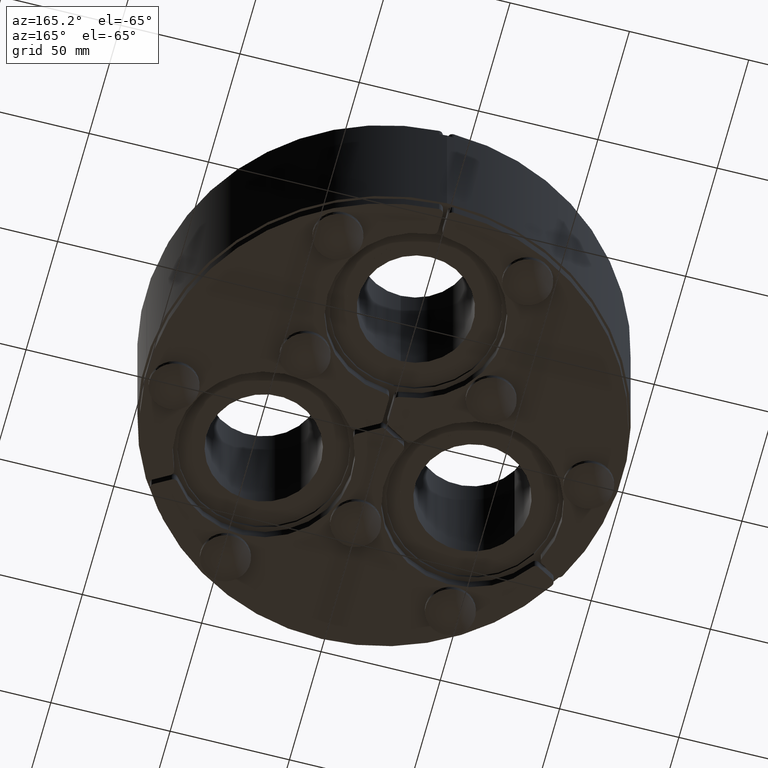
[diagram: clean part render]
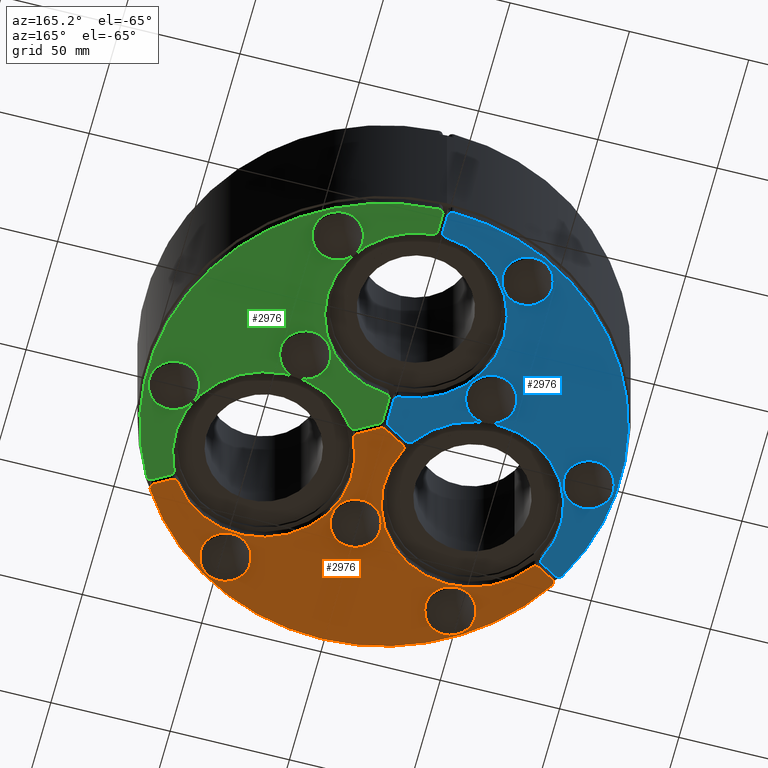
[diagram: same view with three faces highlighted in distinct colors, each labeled with its STEP entity id]
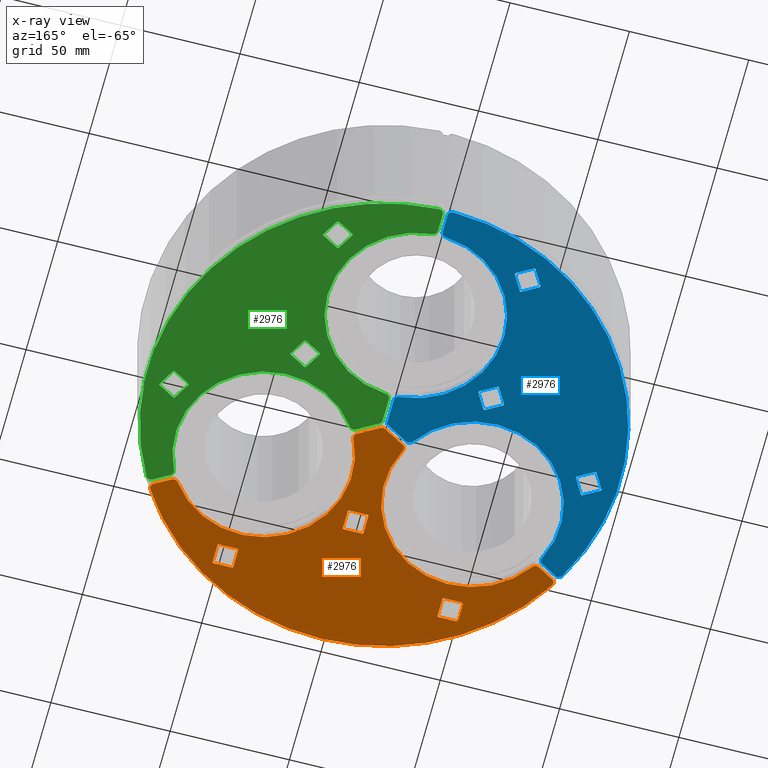
[diagram: x-ray of the same camera — body ghosted, the three highlighted faces saturated]
A machine part, auxiliary view with three faces highlighted in distinct colors.
The next image is the same camera in x-ray (body ghosted, the three faces saturated) — at least one of them is partly hidden behind the body in this view.
Their STEP definitions:

[orange] entity #2976 — the highlighted planar face has unit normal (0, 0, 1).
#2596=CARTESIAN_POINT('',(-83.464278118733006,-49.342823977948214,0.0));
#2597=VERTEX_POINT('',#2596);
#2604=CARTESIAN_POINT('',(-84.164572512933688,-52.127964987280329,0.0));
#2605=VERTEX_POINT('',#2604);
#2606=CARTESIAN_POINT('',(-82.46427811873302,-51.074874785517103,0.0));
#2607=DIRECTION('',(0.0,0.0,1.0));
#2608=DIRECTION('',(-0.969813134617152,0.243849305769063,0.0));
#2609=AXIS2_PLACEMENT_3D('',#2606,#2607,#2608);
#2610=CIRCLE('',#2609,2.0);
#2611=EDGE_CURVE('',#2597,#2605,#2610,.T.);
#2628=CARTESIAN_POINT('',(84.164572512933944,-52.127964987279938,0.0));
#2629=VERTEX_POINT('',#2628);
#2630=CARTESIAN_POINT('',(0.0,1.387779E-016,0.0));
#2631=DIRECTION('',(0.0,0.0,-1.0));
#2632=DIRECTION('',(0.860930717145565,0.508722223099427,0.0));
#2633=AXIS2_PLACEMENT_3D('',#2630,#2631,#2632);
#2634=CIRCLE('',#2633,98.999999999999986);
#2635=EDGE_CURVE('',#2629,#2605,#2634,.T.);
#2655=CARTESIAN_POINT('',(1.580540E-013,-58.103985288041748,0.0));
#2656=DIRECTION('',(0.0,0.0,1.0));
#2657=DIRECTION('',(1.0,0.0,0.0));
#2658=AXIS2_PLACEMENT_3D('',#2655,#2656,#2657);
#2659=PLANE('',#2658);
#2660=ORIENTED_EDGE('',*,*,#2611,.F.);
#2661=CARTESIAN_POINT('',(-76.909199372079286,-45.558247499008488,0.0));
#2662=VERTEX_POINT('',#2661);
#2663=CARTESIAN_POINT('',(-83.46427811873302,-49.342823977948214,0.0));
#2664=DIRECTION('',(0.866025403784439,0.5,0.0));
#2665=VECTOR('',#2664,7.569152957879456);
#2666=LINE('',#2663,#2665);
#2667=EDGE_CURVE('',#2597,#2662,#2666,.T.);
#2668=ORIENTED_EDGE('',*,*,#2667,.T.);
#2669=CARTESIAN_POINT('',(-74.259203655106717,-46.160026598547752,0.0));
#2670=VERTEX_POINT('',#2669);
#2671=CARTESIAN_POINT('',(-75.909199372079286,-47.290298306577363,0.0));
#2672=DIRECTION('',(0.0,0.0,1.0));
#2673=DIRECTION('',(0.221448712561873,0.975172019545623,0.0));
#2674=AXIS2_PLACEMENT_3D('',#2671,#2672,#2673);
#2675=CIRCLE('',#2674,2.0);
#2676=EDGE_CURVE('',#2670,#2662,#2675,.T.);
#2677=ORIENTED_EDGE('',*,*,#2676,.F.);
#2678=CARTESIAN_POINT('',(-10.363208280967214,-9.2696564691491,0.0));
#2679=VERTEX_POINT('',#2678);
#2680=CARTESIAN_POINT('',(-43.734282891114098,-25.25000000000005,0.0));
#2681=DIRECTION('',(0.0,0.0,1.0));
#2682=DIRECTION('',(-0.852195533948477,-0.523223443586265,0.0));
#2683=AXIS2_PLACEMENT_3D('',#2680,#2681,#2682);
#2684=CIRCLE('',#2683,36.999999999999993);
#2685=EDGE_CURVE('',#2670,#2679,#2684,.T.);
#2686=ORIENTED_EDGE('',*,*,#2685,.T.);
#2687=CARTESIAN_POINT('',(-9.559366410148462,-6.673803308561258,0.0));
#2688=VERTEX_POINT('',#2687);
#2689=CARTESIAN_POINT('',(-8.559366410148463,-8.405854116130129,0.0));
#2690=DIRECTION('',(0.0,0.0,1.0));
#2691=DIRECTION('',(-0.955248098267223,0.295805799058867,0.0));
#2692=AXIS2_PLACEMENT_3D('',#2689,#2690,#2691);
#2693=CIRCLE('',#2692,2.0);
#2694=EDGE_CURVE('',#2688,#2679,#2693,.T.);
#2695=ORIENTED_EDGE('',*,*,#2694,.F.);
#2696=CARTESIAN_POINT('',(-0.999999999999628,-1.732050807569175,0.0));
#2697=VERTEX_POINT('',#2696);
#2698=CARTESIAN_POINT('',(-9.559366410148462,-6.673803308561258,0.0));
#2699=DIRECTION('',(0.866025403784438,0.500000000000001,0.0));
#2700=VECTOR('',#2699,9.883505001984148);
#2701=LINE('',#2698,#2700);
#2702=EDGE_CURVE('',#2688,#2697,#2701,.T.);
#2703=ORIENTED_EDGE('',*,*,#2702,.T.);
#2704=CARTESIAN_POINT('',(1.000000000000374,-1.732050807569178,0.0));
#2705=VERTEX_POINT('',#2704);
#2706=CARTESIAN_POINT('',(3.719247E-013,-3.464101615138055,0.0));
#2707=DIRECTION('',(0.0,0.0,1.0));
#2708=DIRECTION('',(0.0,1.0,0.0));
#2709=AXIS2_PLACEMENT_3D('',#2706,#2707,#2708);
#2710=CIRCLE('',#2709,2.0);
#2711=EDGE_CURVE('',#2705,#2697,#2710,.T.);
#2712=ORIENTED_EDGE('',*,*,#2711,.F.);
#2713=CARTESIAN_POINT('',(9.559366410148598,-6.673803308560905,0.0));
#2714=VERTEX_POINT('',#2713);
#2715=CARTESIAN_POINT('',(1.000000000000373,-1.732050807569178,0.0));
#2716=DIRECTION('',(0.866025403784438,-0.500000000000001,0.0));
#2717=VECTOR('',#2716,9.883505001983441);
#2718=LINE('',#2715,#2717);
#2719=EDGE_CURVE('',#2705,#2714,#2718,.T.);
#2720=ORIENTED_EDGE('',*,*,#2719,.T.);
#2721=CARTESIAN_POINT('',(10.363208280967346,-9.269656469148773,0.0));
#2722=VERTEX_POINT('',#2721);
#2723=CARTESIAN_POINT('',(8.559366410148597,-8.405854116129783,0.0));
#2724=DIRECTION('',(0.0,0.0,1.0));
#2725=DIRECTION('',(0.955248098267223,0.295805799058864,0.0));
#2726=AXIS2_PLACEMENT_3D('',#2723,#2724,#2725);
#2727=CIRCLE('',#2726,2.0);
#2728=EDGE_CURVE('',#2722,#2714,#2727,.T.);
#2729=ORIENTED_EDGE('',*,*,#2728,.F.);
#2730=CARTESIAN_POINT('',(74.259203655106944,-46.160026598547418,0.0));
#2731=VERTEX_POINT('',#2730);
#2732=CARTESIAN_POINT('',(43.734282891114098,-25.250000000000021,0.0));
#2733=DIRECTION('',(0.0,0.0,1.0));
#2734=DIRECTION('',(-0.879222560975512,0.476411259597904,0.0));
#2735=AXIS2_PLACEMENT_3D('',#2732,#2733,#2734);
#2736=CIRCLE('',#2735,37.000000000000007);
#2737=EDGE_CURVE('',#2722,#2731,#2736,.T.);
#2738=ORIENTED_EDGE('',*,*,#2737,.T.);
#2739=CARTESIAN_POINT('',(76.909199372079527,-45.558247499008132,0.0));
#2740=VERTEX_POINT('',#2739);
#2741=CARTESIAN_POINT('',(75.909199372079541,-47.290298306577007,0.0));
#2742=DIRECTION('',(0.0,0.0,1.0));
#2743=DIRECTION('',(-0.221448712561886,0.97517201954562,0.0));
#2744=AXIS2_PLACEMENT_3D('',#2741,#2742,#2743);
#2745=CIRCLE('',#2744,2.0);
#2746=EDGE_CURVE('',#2740,#2731,#2745,.T.);
#2747=ORIENTED_EDGE('',*,*,#2746,.F.);
#2748=CARTESIAN_POINT('',(83.464278118733247,-49.34282397794783,0.0));
#2749=VERTEX_POINT('',#2748);
#2750=CARTESIAN_POINT('',(76.909199372079541,-45.558247499008125,0.0));
#2751=DIRECTION('',(0.866025403784439,-0.499999999999999,0.0));
#2752=VECTOR('',#2751,7.56915295787942);
#2753=LINE('',#2750,#2752);
#2754=EDGE_CURVE('',#2740,#2749,#2753,.T.);
#2755=ORIENTED_EDGE('',*,*,#2754,.T.);
#2756=CARTESIAN_POINT('',(82.464278118733247,-51.074874785516712,0.0));
#2757=DIRECTION('',(0.0,0.0,1.0));
#2758=DIRECTION('',(0.969813134617153,0.24384930576906,0.0));
#2759=AXIS2_PLACEMENT_3D('',#2756,#2757,#2758);
#2760=CIRCLE('',#2759,2.0);
#2761=EDGE_CURVE('',#2629,#2749,#2760,.T.);
#2762=ORIENTED_EDGE('',*,*,#2761,.F.);
#2763=ORIENTED_EDGE('',*,*,#2635,.T.);
#2764=EDGE_LOOP('',(#2660,#2668,#2677,#2686,#2695,#2703,#2712,#2720,#2729,#2738,#2747,#2755,#2762,#2763));
#2765=FACE_OUTER_BOUND('',#2764,.T.);
#2766=CARTESIAN_POINT('',(51.478614294599041,-69.279294504124238,0.0));
#2767=VERTEX_POINT('',#2766);
#2768=CARTESIAN_POINT('',(50.978614294599048,-68.779294504124266,0.0));
#2769=VERTEX_POINT('',#2768);
#2770=CARTESIAN_POINT('',(50.978614294599048,-69.279294504124252,0.0));
#2771=DIRECTION('',(0.0,0.0,1.0));
#2772=DIRECTION('',(-1.0,0.0,0.0));
#2773=AXIS2_PLACEMENT_3D('',#2770,#2771,#2772);
#2774=CIRCLE('',#2773,0.499999999999994);
#2775=EDGE_CURVE('',#2767,#2769,#2774,.T.);
#2776=ORIENTED_EDGE('',*,*,#2775,.T.);
#2777=CARTESIAN_POINT('',(43.278614294599038,-68.779294504124252,0.0));
#2778=VERTEX_POINT('',#2777);
#2779=CARTESIAN_POINT('',(50.978614294599055,-68.779294504124252,0.0));
#2780=DIRECTION('',(-1.0,0.0,0.0));
#2781=VECTOR('',#2780,7.700000000000017);
#2782=LINE('',#2779,#2781);
#2783=EDGE_CURVE('',#2769,#2778,#2782,.T.);
#2784=ORIENTED_EDGE('',*,*,#2783,.T.);
#2785=CARTESIAN_POINT('',(42.778614294599045,-69.279294504124238,0.0));
#2786=VERTEX_POINT('',#2785);
#2787=CARTESIAN_POINT('',(43.278614294599038,-69.279294504124238,0.0));
#2788=DIRECTION('',(0.0,0.0,1.0));
#2789=DIRECTION('',(0.0,-1.0,0.0));
#2790=AXIS2_PLACEMENT_3D('',#2787,#2788,#2789);
#2791=CIRCLE('',#2790,0.500000000000003);
#2792=EDGE_CURVE('',#2778,#2786,#2791,.T.);
#2793=ORIENTED_EDGE('',*,*,#2792,.T.);
#2794=CARTESIAN_POINT('',(42.778614294599045,-76.979294504124269,0.0));
#2795=VERTEX_POINT('',#2794);
#2796=CARTESIAN_POINT('',(42.778614294599045,-69.279294504124238,0.0));
#2797=DIRECTION('',(0.0,-1.0,0.0));
#2798=VECTOR('',#2797,7.700000000000031);
#2799=LINE('',#2796,#2798);
#2800=EDGE_CURVE('',#2786,#2795,#2799,.T.);
#2801=ORIENTED_EDGE('',*,*,#2800,.T.);
#2802=CARTESIAN_POINT('',(43.278614294599038,-77.479294504124269,0.0));
#2803=VERTEX_POINT('',#2802);
#2804=CARTESIAN_POINT('',(43.278614294599038,-76.979294504124283,0.0));
#2805=DIRECTION('',(0.0,0.0,1.0));
#2806=DIRECTION('',(1.0,0.0,0.0));
#2807=AXIS2_PLACEMENT_3D('',#2804,#2805,#2806);
#2808=CIRCLE('',#2807,0.499999999999998);
#2809=EDGE_CURVE('',#2795,#2803,#2808,.T.);
#2810=ORIENTED_EDGE('',*,*,#2809,.T.);
#2811=CARTESIAN_POINT('',(50.978614294599048,-77.479294504124269,0.0));
#2812=VERTEX_POINT('',#2811);
#2813=CARTESIAN_POINT('',(43.278614294599038,-77.479294504124269,0.0));
#2814=DIRECTION('',(1.0,0.0,0.0));
#2815=VECTOR('',#2814,7.700000000000017);
#2816=LINE('',#2813,#2815);
#2817=EDGE_CURVE('',#2803,#2812,#2816,.T.);
#2818=ORIENTED_EDGE('',*,*,#2817,.T.);
#2819=CARTESIAN_POINT('',(51.478614294599041,-76.979294504124269,0.0));
#2820=VERTEX_POINT('',#2819);
#2821=CARTESIAN_POINT('',(50.978614294599048,-76.979294504124283,0.0));
#2822=DIRECTION('',(0.0,0.0,1.0));
#2823=DIRECTION('',(0.0,1.0,0.0));
#2824=AXIS2_PLACEMENT_3D('',#2821,#2822,#2823);
#2825=CIRCLE('',#2824,0.499999999999998);
#2826=EDGE_CURVE('',#2812,#2820,#2825,.T.);
#2827=ORIENTED_EDGE('',*,*,#2826,.T.);
#2828=CARTESIAN_POINT('',(51.478614294599041,-76.979294504124269,0.0));
#2829=DIRECTION('',(0.0,1.0,0.0));
#2830=VECTOR('',#2829,7.700000000000031);
#2831=LINE('',#2828,#2830);
#2832=EDGE_CURVE('',#2820,#2767,#2831,.T.);
#2833=ORIENTED_EDGE('',*,*,#2832,.T.);
#2834=EDGE_LOOP('',(#2776,#2784,#2793,#2801,#2810,#2818,#2827,#2833));
#2835=FACE_BOUND('',#2834,.T.);
#2836=CARTESIAN_POINT('',(-50.978614294598998,-68.779294504124294,0.0));
#2837=VERTEX_POINT('',#2836);
#2838=CARTESIAN_POINT('',(-51.478614294598998,-69.279294504124294,0.0));
#2839=VERTEX_POINT('',#2838);
#2840=CARTESIAN_POINT('',(-50.978614294598998,-69.279294504124294,0.0));
#2841=DIRECTION('',(0.0,0.0,1.0));
#2842=DIRECTION('',(0.0,-1.0,0.0));
#2843=AXIS2_PLACEMENT_3D('',#2840,#2841,#2842);
#2844=CIRCLE('',#2843,0.500000000000003);
#2845=EDGE_CURVE('',#2837,#2839,#2844,.T.);
#2846=ORIENTED_EDGE('',*,*,#2845,.T.);
#2847=CARTESIAN_POINT('',(-51.478614294598998,-76.979294504124283,0.0));
#2848=VERTEX_POINT('',#2847);
#2849=CARTESIAN_POINT('',(-51.478614294598998,-69.279294504124294,0.0));
#2850=DIRECTION('',(0.0,-1.0,0.0));
#2851=VECTOR('',#2850,7.699999999999989);
#2852=LINE('',#2849,#2851);
#2853=EDGE_CURVE('',#2839,#2848,#2852,.T.);
#2854=ORIENTED_EDGE('',*,*,#2853,.T.);
#2855=CARTESIAN_POINT('',(-50.978614294598998,-77.479294504124283,0.0));
#2856=VERTEX_POINT('',#2855);
#2857=CARTESIAN_POINT('',(-50.978614294598998,-76.979294504124283,0.0));
#2858=DIRECTION('',(0.0,0.0,1.0));
#2859=DIRECTION('',(1.0,0.0,0.0));
#2860=AXIS2_PLACEMENT_3D('',#2857,#2858,#2859);
#2861=CIRCLE('',#2860,0.499999999999998);
#2862=EDGE_CURVE('',#2848,#2856,#2861,.T.);
#2863=ORIENTED_EDGE('',*,*,#2862,.T.);
#2864=CARTESIAN_POINT('',(-43.278614294599002,-77.479294504124283,0.0));
#2865=VERTEX_POINT('',#2864);
#2866=CARTESIAN_POINT('',(-50.978614294598998,-77.479294504124283,0.0));
#2867=DIRECTION('',(1.0,0.0,0.0));
#2868=VECTOR('',#2867,7.700000000000003);
#2869=LINE('',#2866,#2868);
#2870=EDGE_CURVE('',#2856,#2865,#2869,.T.);
#2871=ORIENTED_EDGE('',*,*,#2870,.T.);
#2872=CARTESIAN_POINT('',(-42.778614294599002,-76.979294504124283,0.0));
#2873=VERTEX_POINT('',#2872);
#2874=CARTESIAN_POINT('',(-43.278614294599002,-76.979294504124283,0.0));
#2875=DIRECTION('',(0.0,0.0,1.0));
#2876=DIRECTION('',(0.0,1.0,0.0));
#2877=AXIS2_PLACEMENT_3D('',#2874,#2875,#2876);
#2878=CIRCLE('',#2877,0.499999999999998);
#2879=EDGE_CURVE('',#2865,#2873,#2878,.T.);
#2880=ORIENTED_EDGE('',*,*,#2879,.T.);
#2881=CARTESIAN_POINT('',(-42.778614294599002,-69.279294504124294,0.0));
#2882=VERTEX_POINT('',#2881);
#2883=CARTESIAN_POINT('',(-42.778614294599002,-76.979294504124283,0.0));
#2884=DIRECTION('',(0.0,1.0,0.0));
#2885=VECTOR('',#2884,7.699999999999989);
#2886=LINE('',#2883,#2885);
#2887=EDGE_CURVE('',#2873,#2882,#2886,.T.);
#2888=ORIENTED_EDGE('',*,*,#2887,.T.);
#2889=CARTESIAN_POINT('',(-43.278614294599002,-68.779294504124266,0.0));
#2890=VERTEX_POINT('',#2889);
#2891=CARTESIAN_POINT('',(-43.278614294599002,-69.279294504124294,0.0));
#2892=DIRECTION('',(0.0,0.0,1.0));
#2893=DIRECTION('',(-1.0,0.0,0.0));
#2894=AXIS2_PLACEMENT_3D('',#2891,#2892,#2893);
#2895=CIRCLE('',#2894,0.499999999999994);
#2896=EDGE_CURVE('',#2882,#2890,#2895,.T.);
#2897=ORIENTED_EDGE('',*,*,#2896,.T.);
#2898=CARTESIAN_POINT('',(-43.278614294599002,-68.779294504124266,0.0));
#2899=DIRECTION('',(-1.0,0.0,0.0));
#2900=VECTOR('',#2899,7.699999999999996);
#2901=LINE('',#2898,#2900);
#2902=EDGE_CURVE('',#2890,#2837,#2901,.T.);
#2903=ORIENTED_EDGE('',*,*,#2902,.T.);
#2904=EDGE_LOOP('',(#2846,#2854,#2863,#2871,#2880,#2888,#2897,#2903));
#2905=FACE_BOUND('',#2904,.T.);
#2906=CARTESIAN_POINT('',(4.350000000000008,-41.150000000000233,0.0));
#2907=VERTEX_POINT('',#2906);
#2908=CARTESIAN_POINT('',(3.849999999999996,-40.650000000000233,0.0));
#2909=VERTEX_POINT('',#2908);
#2910=CARTESIAN_POINT('',(3.850000000000006,-41.15000000000024,0.0));
#2911=DIRECTION('',(0.0,0.0,1.0));
#2912=DIRECTION('',(-1.0,0.0,0.0));
#2913=AXIS2_PLACEMENT_3D('',#2910,#2911,#2912);
#2914=CIRCLE('',#2913,0.499999999999994);
#2915=EDGE_CURVE('',#2907,#2909,#2914,.T.);
#2916=ORIENTED_EDGE('',*,*,#2915,.T.);
#2917=CARTESIAN_POINT('',(-3.849999999999994,-40.650000000000247,0.0));
#2918=VERTEX_POINT('',#2917);
#2919=CARTESIAN_POINT('',(3.849999999999996,-40.65000000000024,0.0));
#2920=DIRECTION('',(-1.0,0.0,0.0));
#2921=VECTOR('',#2920,7.69999999999999);
#2922=LINE('',#2919,#2921);
#2923=EDGE_CURVE('',#2909,#2918,#2922,.T.);
#2924=ORIENTED_EDGE('',*,*,#2923,.T.);
#2925=CARTESIAN_POINT('',(-4.349999999999995,-41.150000000000233,0.0));
#2926=VERTEX_POINT('',#2925);
#2927=CARTESIAN_POINT('',(-3.849999999999993,-41.15000000000024,0.0));
#2928=DIRECTION('',(0.0,0.0,1.0));
#2929=DIRECTION('',(0.0,-1.0,0.0));
#2930=AXIS2_PLACEMENT_3D('',#2927,#2928,#2929);
#2931=CIRCLE('',#2930,0.500000000000003);
#2932=EDGE_CURVE('',#2918,#2926,#2931,.T.);
#2933=ORIENTED_EDGE('',*,*,#2932,.T.);
#2934=CARTESIAN_POINT('',(-4.349999999999993,-48.85000000000025,0.0));
#2935=VERTEX_POINT('',#2934);
#2936=CARTESIAN_POINT('',(-4.349999999999995,-41.150000000000233,0.0));
#2937=DIRECTION('',(0.0,-1.0,0.0));
#2938=VECTOR('',#2937,7.70000000000001);
#2939=LINE('',#2936,#2938);
#2940=EDGE_CURVE('',#2926,#2935,#2939,.T.);
#2941=ORIENTED_EDGE('',*,*,#2940,.T.);
#2942=CARTESIAN_POINT('',(-3.849999999999991,-49.350000000000236,0.0));
#2943=VERTEX_POINT('',#2942);
#2944=CARTESIAN_POINT('',(-3.849999999999991,-48.850000000000236,0.0));
#2945=DIRECTION('',(0.0,0.0,1.0));
#2946=DIRECTION('',(1.0,0.0,0.0));
#2947=AXIS2_PLACEMENT_3D('',#2944,#2945,#2946);
#2948=CIRCLE('',#2947,0.499999999999998);
#2949=EDGE_CURVE('',#2935,#2943,#2948,.T.);
#2950=ORIENTED_EDGE('',*,*,#2949,.T.);
#2951=CARTESIAN_POINT('',(3.85,-49.350000000000236,0.0));
#2952=VERTEX_POINT('',#2951);
#2953=CARTESIAN_POINT('',(-3.849999999999991,-49.350000000000236,0.0));
#2954=DIRECTION('',(1.0,0.0,0.0));
#2955=VECTOR('',#2954,7.69999999999999);
#2956=LINE('',#2953,#2955);
#2957=EDGE_CURVE('',#2943,#2952,#2956,.T.);
#2958=ORIENTED_EDGE('',*,*,#2957,.T.);
#2959=CARTESIAN_POINT('',(4.350000000000001,-48.85000000000025,0.0));
#2960=VERTEX_POINT('',#2959);
#2961=CARTESIAN_POINT('',(3.85,-48.850000000000236,0.0));
#2962=DIRECTION('',(0.0,0.0,1.0));
#2963=DIRECTION('',(0.0,1.0,0.0));
#2964=AXIS2_PLACEMENT_3D('',#2961,#2962,#2963);
#2965=CIRCLE('',#2964,0.499999999999998);
#2966=EDGE_CURVE('',#2952,#2960,#2965,.T.);
#2967=ORIENTED_EDGE('',*,*,#2966,.T.);
#2968=CARTESIAN_POINT('',(4.350000000000002,-48.850000000000243,0.0));
#2969=DIRECTION('',(0.0,1.0,0.0));
#2970=VECTOR('',#2969,7.70000000000001);
#2971=LINE('',#2968,#2970);
#2972=EDGE_CURVE('',#2960,#2907,#2971,.T.);
#2973=ORIENTED_EDGE('',*,*,#2972,.T.);
#2974=EDGE_LOOP('',(#2916,#2924,#2933,#2941,#2950,#2958,#2967,#2973));
#2975=FACE_BOUND('',#2974,.T.);
#2976=ADVANCED_FACE('',(#2765,#2835,#2905,#2975),#2659,.F.);

[blue] entity #2976 — the highlighted planar face has unit normal (0, 0, 1).
#2596=CARTESIAN_POINT('',(-83.464278118733006,-49.342823977948214,0.0));
#2597=VERTEX_POINT('',#2596);
#2604=CARTESIAN_POINT('',(-84.164572512933688,-52.127964987280329,0.0));
#2605=VERTEX_POINT('',#2604);
#2606=CARTESIAN_POINT('',(-82.46427811873302,-51.074874785517103,0.0));
#2607=DIRECTION('',(0.0,0.0,1.0));
#2608=DIRECTION('',(-0.969813134617152,0.243849305769063,0.0));
#2609=AXIS2_PLACEMENT_3D('',#2606,#2607,#2608);
#2610=CIRCLE('',#2609,2.0);
#2611=EDGE_CURVE('',#2597,#2605,#2610,.T.);
#2628=CARTESIAN_POINT('',(84.164572512933944,-52.127964987279938,0.0));
#2629=VERTEX_POINT('',#2628);
#2630=CARTESIAN_POINT('',(0.0,1.387779E-016,0.0));
#2631=DIRECTION('',(0.0,0.0,-1.0));
#2632=DIRECTION('',(0.860930717145565,0.508722223099427,0.0));
#2633=AXIS2_PLACEMENT_3D('',#2630,#2631,#2632);
#2634=CIRCLE('',#2633,98.999999999999986);
#2635=EDGE_CURVE('',#2629,#2605,#2634,.T.);
#2655=CARTESIAN_POINT('',(1.580540E-013,-58.103985288041748,0.0));
#2656=DIRECTION('',(0.0,0.0,1.0));
#2657=DIRECTION('',(1.0,0.0,0.0));
#2658=AXIS2_PLACEMENT_3D('',#2655,#2656,#2657);
#2659=PLANE('',#2658);
#2660=ORIENTED_EDGE('',*,*,#2611,.F.);
#2661=CARTESIAN_POINT('',(-76.909199372079286,-45.558247499008488,0.0));
#2662=VERTEX_POINT('',#2661);
#2663=CARTESIAN_POINT('',(-83.46427811873302,-49.342823977948214,0.0));
#2664=DIRECTION('',(0.866025403784439,0.5,0.0));
#2665=VECTOR('',#2664,7.569152957879456);
#2666=LINE('',#2663,#2665);
#2667=EDGE_CURVE('',#2597,#2662,#2666,.T.);
#2668=ORIENTED_EDGE('',*,*,#2667,.T.);
#2669=CARTESIAN_POINT('',(-74.259203655106717,-46.160026598547752,0.0));
#2670=VERTEX_POINT('',#2669);
#2671=CARTESIAN_POINT('',(-75.909199372079286,-47.290298306577363,0.0));
#2672=DIRECTION('',(0.0,0.0,1.0));
#2673=DIRECTION('',(0.221448712561873,0.975172019545623,0.0));
#2674=AXIS2_PLACEMENT_3D('',#2671,#2672,#2673);
#2675=CIRCLE('',#2674,2.0);
#2676=EDGE_CURVE('',#2670,#2662,#2675,.T.);
#2677=ORIENTED_EDGE('',*,*,#2676,.F.);
#2678=CARTESIAN_POINT('',(-10.363208280967214,-9.2696564691491,0.0));
#2679=VERTEX_POINT('',#2678);
#2680=CARTESIAN_POINT('',(-43.734282891114098,-25.25000000000005,0.0));
#2681=DIRECTION('',(0.0,0.0,1.0));
#2682=DIRECTION('',(-0.852195533948477,-0.523223443586265,0.0));
#2683=AXIS2_PLACEMENT_3D('',#2680,#2681,#2682);
#2684=CIRCLE('',#2683,36.999999999999993);
#2685=EDGE_CURVE('',#2670,#2679,#2684,.T.);
#2686=ORIENTED_EDGE('',*,*,#2685,.T.);
#2687=CARTESIAN_POINT('',(-9.559366410148462,-6.673803308561258,0.0));
#2688=VERTEX_POINT('',#2687);
#2689=CARTESIAN_POINT('',(-8.559366410148463,-8.405854116130129,0.0));
#2690=DIRECTION('',(0.0,0.0,1.0));
#2691=DIRECTION('',(-0.955248098267223,0.295805799058867,0.0));
#2692=AXIS2_PLACEMENT_3D('',#2689,#2690,#2691);
#2693=CIRCLE('',#2692,2.0);
#2694=EDGE_CURVE('',#2688,#2679,#2693,.T.);
#2695=ORIENTED_EDGE('',*,*,#2694,.F.);
#2696=CARTESIAN_POINT('',(-0.999999999999628,-1.732050807569175,0.0));
#2697=VERTEX_POINT('',#2696);
#2698=CARTESIAN_POINT('',(-9.559366410148462,-6.673803308561258,0.0));
#2699=DIRECTION('',(0.866025403784438,0.500000000000001,0.0));
#2700=VECTOR('',#2699,9.883505001984148);
#2701=LINE('',#2698,#2700);
#2702=EDGE_CURVE('',#2688,#2697,#2701,.T.);
#2703=ORIENTED_EDGE('',*,*,#2702,.T.);
#2704=CARTESIAN_POINT('',(1.000000000000374,-1.732050807569178,0.0));
#2705=VERTEX_POINT('',#2704);
#2706=CARTESIAN_POINT('',(3.719247E-013,-3.464101615138055,0.0));
#2707=DIRECTION('',(0.0,0.0,1.0));
#2708=DIRECTION('',(0.0,1.0,0.0));
#2709=AXIS2_PLACEMENT_3D('',#2706,#2707,#2708);
#2710=CIRCLE('',#2709,2.0);
#2711=EDGE_CURVE('',#2705,#2697,#2710,.T.);
#2712=ORIENTED_EDGE('',*,*,#2711,.F.);
#2713=CARTESIAN_POINT('',(9.559366410148598,-6.673803308560905,0.0));
#2714=VERTEX_POINT('',#2713);
#2715=CARTESIAN_POINT('',(1.000000000000373,-1.732050807569178,0.0));
#2716=DIRECTION('',(0.866025403784438,-0.500000000000001,0.0));
#2717=VECTOR('',#2716,9.883505001983441);
#2718=LINE('',#2715,#2717);
#2719=EDGE_CURVE('',#2705,#2714,#2718,.T.);
#2720=ORIENTED_EDGE('',*,*,#2719,.T.);
#2721=CARTESIAN_POINT('',(10.363208280967346,-9.269656469148773,0.0));
#2722=VERTEX_POINT('',#2721);
#2723=CARTESIAN_POINT('',(8.559366410148597,-8.405854116129783,0.0));
#2724=DIRECTION('',(0.0,0.0,1.0));
#2725=DIRECTION('',(0.955248098267223,0.295805799058864,0.0));
#2726=AXIS2_PLACEMENT_3D('',#2723,#2724,#2725);
#2727=CIRCLE('',#2726,2.0);
#2728=EDGE_CURVE('',#2722,#2714,#2727,.T.);
#2729=ORIENTED_EDGE('',*,*,#2728,.F.);
#2730=CARTESIAN_POINT('',(74.259203655106944,-46.160026598547418,0.0));
#2731=VERTEX_POINT('',#2730);
#2732=CARTESIAN_POINT('',(43.734282891114098,-25.250000000000021,0.0));
#2733=DIRECTION('',(0.0,0.0,1.0));
#2734=DIRECTION('',(-0.879222560975512,0.476411259597904,0.0));
#2735=AXIS2_PLACEMENT_3D('',#2732,#2733,#2734);
#2736=CIRCLE('',#2735,37.000000000000007);
#2737=EDGE_CURVE('',#2722,#2731,#2736,.T.);
#2738=ORIENTED_EDGE('',*,*,#2737,.T.);
#2739=CARTESIAN_POINT('',(76.909199372079527,-45.558247499008132,0.0));
#2740=VERTEX_POINT('',#2739);
#2741=CARTESIAN_POINT('',(75.909199372079541,-47.290298306577007,0.0));
#2742=DIRECTION('',(0.0,0.0,1.0));
#2743=DIRECTION('',(-0.221448712561886,0.97517201954562,0.0));
#2744=AXIS2_PLACEMENT_3D('',#2741,#2742,#2743);
#2745=CIRCLE('',#2744,2.0);
#2746=EDGE_CURVE('',#2740,#2731,#2745,.T.);
#2747=ORIENTED_EDGE('',*,*,#2746,.F.);
#2748=CARTESIAN_POINT('',(83.464278118733247,-49.34282397794783,0.0));
#2749=VERTEX_POINT('',#2748);
#2750=CARTESIAN_POINT('',(76.909199372079541,-45.558247499008125,0.0));
#2751=DIRECTION('',(0.866025403784439,-0.499999999999999,0.0));
#2752=VECTOR('',#2751,7.56915295787942);
#2753=LINE('',#2750,#2752);
#2754=EDGE_CURVE('',#2740,#2749,#2753,.T.);
#2755=ORIENTED_EDGE('',*,*,#2754,.T.);
#2756=CARTESIAN_POINT('',(82.464278118733247,-51.074874785516712,0.0));
#2757=DIRECTION('',(0.0,0.0,1.0));
#2758=DIRECTION('',(0.969813134617153,0.24384930576906,0.0));
#2759=AXIS2_PLACEMENT_3D('',#2756,#2757,#2758);
#2760=CIRCLE('',#2759,2.0);
#2761=EDGE_CURVE('',#2629,#2749,#2760,.T.);
#2762=ORIENTED_EDGE('',*,*,#2761,.F.);
#2763=ORIENTED_EDGE('',*,*,#2635,.T.);
#2764=EDGE_LOOP('',(#2660,#2668,#2677,#2686,#2695,#2703,#2712,#2720,#2729,#2738,#2747,#2755,#2762,#2763));
#2765=FACE_OUTER_BOUND('',#2764,.T.);
#2766=CARTESIAN_POINT('',(51.478614294599041,-69.279294504124238,0.0));
#2767=VERTEX_POINT('',#2766);
#2768=CARTESIAN_POINT('',(50.978614294599048,-68.779294504124266,0.0));
#2769=VERTEX_POINT('',#2768);
#2770=CARTESIAN_POINT('',(50.978614294599048,-69.279294504124252,0.0));
#2771=DIRECTION('',(0.0,0.0,1.0));
#2772=DIRECTION('',(-1.0,0.0,0.0));
#2773=AXIS2_PLACEMENT_3D('',#2770,#2771,#2772);
#2774=CIRCLE('',#2773,0.499999999999994);
#2775=EDGE_CURVE('',#2767,#2769,#2774,.T.);
#2776=ORIENTED_EDGE('',*,*,#2775,.T.);
#2777=CARTESIAN_POINT('',(43.278614294599038,-68.779294504124252,0.0));
#2778=VERTEX_POINT('',#2777);
#2779=CARTESIAN_POINT('',(50.978614294599055,-68.779294504124252,0.0));
#2780=DIRECTION('',(-1.0,0.0,0.0));
#2781=VECTOR('',#2780,7.700000000000017);
#2782=LINE('',#2779,#2781);
#2783=EDGE_CURVE('',#2769,#2778,#2782,.T.);
#2784=ORIENTED_EDGE('',*,*,#2783,.T.);
#2785=CARTESIAN_POINT('',(42.778614294599045,-69.279294504124238,0.0));
#2786=VERTEX_POINT('',#2785);
#2787=CARTESIAN_POINT('',(43.278614294599038,-69.279294504124238,0.0));
#2788=DIRECTION('',(0.0,0.0,1.0));
#2789=DIRECTION('',(0.0,-1.0,0.0));
#2790=AXIS2_PLACEMENT_3D('',#2787,#2788,#2789);
#2791=CIRCLE('',#2790,0.500000000000003);
#2792=EDGE_CURVE('',#2778,#2786,#2791,.T.);
#2793=ORIENTED_EDGE('',*,*,#2792,.T.);
#2794=CARTESIAN_POINT('',(42.778614294599045,-76.979294504124269,0.0));
#2795=VERTEX_POINT('',#2794);
#2796=CARTESIAN_POINT('',(42.778614294599045,-69.279294504124238,0.0));
#2797=DIRECTION('',(0.0,-1.0,0.0));
#2798=VECTOR('',#2797,7.700000000000031);
#2799=LINE('',#2796,#2798);
#2800=EDGE_CURVE('',#2786,#2795,#2799,.T.);
#2801=ORIENTED_EDGE('',*,*,#2800,.T.);
#2802=CARTESIAN_POINT('',(43.278614294599038,-77.479294504124269,0.0));
#2803=VERTEX_POINT('',#2802);
#2804=CARTESIAN_POINT('',(43.278614294599038,-76.979294504124283,0.0));
#2805=DIRECTION('',(0.0,0.0,1.0));
#2806=DIRECTION('',(1.0,0.0,0.0));
#2807=AXIS2_PLACEMENT_3D('',#2804,#2805,#2806);
#2808=CIRCLE('',#2807,0.499999999999998);
#2809=EDGE_CURVE('',#2795,#2803,#2808,.T.);
#2810=ORIENTED_EDGE('',*,*,#2809,.T.);
#2811=CARTESIAN_POINT('',(50.978614294599048,-77.479294504124269,0.0));
#2812=VERTEX_POINT('',#2811);
#2813=CARTESIAN_POINT('',(43.278614294599038,-77.479294504124269,0.0));
#2814=DIRECTION('',(1.0,0.0,0.0));
#2815=VECTOR('',#2814,7.700000000000017);
#2816=LINE('',#2813,#2815);
#2817=EDGE_CURVE('',#2803,#2812,#2816,.T.);
#2818=ORIENTED_EDGE('',*,*,#2817,.T.);
#2819=CARTESIAN_POINT('',(51.478614294599041,-76.979294504124269,0.0));
#2820=VERTEX_POINT('',#2819);
#2821=CARTESIAN_POINT('',(50.978614294599048,-76.979294504124283,0.0));
#2822=DIRECTION('',(0.0,0.0,1.0));
#2823=DIRECTION('',(0.0,1.0,0.0));
#2824=AXIS2_PLACEMENT_3D('',#2821,#2822,#2823);
#2825=CIRCLE('',#2824,0.499999999999998);
#2826=EDGE_CURVE('',#2812,#2820,#2825,.T.);
#2827=ORIENTED_EDGE('',*,*,#2826,.T.);
#2828=CARTESIAN_POINT('',(51.478614294599041,-76.979294504124269,0.0));
#2829=DIRECTION('',(0.0,1.0,0.0));
#2830=VECTOR('',#2829,7.700000000000031);
#2831=LINE('',#2828,#2830);
#2832=EDGE_CURVE('',#2820,#2767,#2831,.T.);
#2833=ORIENTED_EDGE('',*,*,#2832,.T.);
#2834=EDGE_LOOP('',(#2776,#2784,#2793,#2801,#2810,#2818,#2827,#2833));
#2835=FACE_BOUND('',#2834,.T.);
#2836=CARTESIAN_POINT('',(-50.978614294598998,-68.779294504124294,0.0));
#2837=VERTEX_POINT('',#2836);
#2838=CARTESIAN_POINT('',(-51.478614294598998,-69.279294504124294,0.0));
#2839=VERTEX_POINT('',#2838);
#2840=CARTESIAN_POINT('',(-50.978614294598998,-69.279294504124294,0.0));
#2841=DIRECTION('',(0.0,0.0,1.0));
#2842=DIRECTION('',(0.0,-1.0,0.0));
#2843=AXIS2_PLACEMENT_3D('',#2840,#2841,#2842);
#2844=CIRCLE('',#2843,0.500000000000003);
#2845=EDGE_CURVE('',#2837,#2839,#2844,.T.);
#2846=ORIENTED_EDGE('',*,*,#2845,.T.);
#2847=CARTESIAN_POINT('',(-51.478614294598998,-76.979294504124283,0.0));
#2848=VERTEX_POINT('',#2847);
#2849=CARTESIAN_POINT('',(-51.478614294598998,-69.279294504124294,0.0));
#2850=DIRECTION('',(0.0,-1.0,0.0));
#2851=VECTOR('',#2850,7.699999999999989);
#2852=LINE('',#2849,#2851);
#2853=EDGE_CURVE('',#2839,#2848,#2852,.T.);
#2854=ORIENTED_EDGE('',*,*,#2853,.T.);
#2855=CARTESIAN_POINT('',(-50.978614294598998,-77.479294504124283,0.0));
#2856=VERTEX_POINT('',#2855);
#2857=CARTESIAN_POINT('',(-50.978614294598998,-76.979294504124283,0.0));
#2858=DIRECTION('',(0.0,0.0,1.0));
#2859=DIRECTION('',(1.0,0.0,0.0));
#2860=AXIS2_PLACEMENT_3D('',#2857,#2858,#2859);
#2861=CIRCLE('',#2860,0.499999999999998);
#2862=EDGE_CURVE('',#2848,#2856,#2861,.T.);
#2863=ORIENTED_EDGE('',*,*,#2862,.T.);
#2864=CARTESIAN_POINT('',(-43.278614294599002,-77.479294504124283,0.0));
#2865=VERTEX_POINT('',#2864);
#2866=CARTESIAN_POINT('',(-50.978614294598998,-77.479294504124283,0.0));
#2867=DIRECTION('',(1.0,0.0,0.0));
#2868=VECTOR('',#2867,7.700000000000003);
#2869=LINE('',#2866,#2868);
#2870=EDGE_CURVE('',#2856,#2865,#2869,.T.);
#2871=ORIENTED_EDGE('',*,*,#2870,.T.);
#2872=CARTESIAN_POINT('',(-42.778614294599002,-76.979294504124283,0.0));
#2873=VERTEX_POINT('',#2872);
#2874=CARTESIAN_POINT('',(-43.278614294599002,-76.979294504124283,0.0));
#2875=DIRECTION('',(0.0,0.0,1.0));
#2876=DIRECTION('',(0.0,1.0,0.0));
#2877=AXIS2_PLACEMENT_3D('',#2874,#2875,#2876);
#2878=CIRCLE('',#2877,0.499999999999998);
#2879=EDGE_CURVE('',#2865,#2873,#2878,.T.);
#2880=ORIENTED_EDGE('',*,*,#2879,.T.);
#2881=CARTESIAN_POINT('',(-42.778614294599002,-69.279294504124294,0.0));
#2882=VERTEX_POINT('',#2881);
#2883=CARTESIAN_POINT('',(-42.778614294599002,-76.979294504124283,0.0));
#2884=DIRECTION('',(0.0,1.0,0.0));
#2885=VECTOR('',#2884,7.699999999999989);
#2886=LINE('',#2883,#2885);
#2887=EDGE_CURVE('',#2873,#2882,#2886,.T.);
#2888=ORIENTED_EDGE('',*,*,#2887,.T.);
#2889=CARTESIAN_POINT('',(-43.278614294599002,-68.779294504124266,0.0));
#2890=VERTEX_POINT('',#2889);
#2891=CARTESIAN_POINT('',(-43.278614294599002,-69.279294504124294,0.0));
#2892=DIRECTION('',(0.0,0.0,1.0));
#2893=DIRECTION('',(-1.0,0.0,0.0));
#2894=AXIS2_PLACEMENT_3D('',#2891,#2892,#2893);
#2895=CIRCLE('',#2894,0.499999999999994);
#2896=EDGE_CURVE('',#2882,#2890,#2895,.T.);
#2897=ORIENTED_EDGE('',*,*,#2896,.T.);
#2898=CARTESIAN_POINT('',(-43.278614294599002,-68.779294504124266,0.0));
#2899=DIRECTION('',(-1.0,0.0,0.0));
#2900=VECTOR('',#2899,7.699999999999996);
#2901=LINE('',#2898,#2900);
#2902=EDGE_CURVE('',#2890,#2837,#2901,.T.);
#2903=ORIENTED_EDGE('',*,*,#2902,.T.);
#2904=EDGE_LOOP('',(#2846,#2854,#2863,#2871,#2880,#2888,#2897,#2903));
#2905=FACE_BOUND('',#2904,.T.);
#2906=CARTESIAN_POINT('',(4.350000000000008,-41.150000000000233,0.0));
#2907=VERTEX_POINT('',#2906);
#2908=CARTESIAN_POINT('',(3.849999999999996,-40.650000000000233,0.0));
#2909=VERTEX_POINT('',#2908);
#2910=CARTESIAN_POINT('',(3.850000000000006,-41.15000000000024,0.0));
#2911=DIRECTION('',(0.0,0.0,1.0));
#2912=DIRECTION('',(-1.0,0.0,0.0));
#2913=AXIS2_PLACEMENT_3D('',#2910,#2911,#2912);
#2914=CIRCLE('',#2913,0.499999999999994);
#2915=EDGE_CURVE('',#2907,#2909,#2914,.T.);
#2916=ORIENTED_EDGE('',*,*,#2915,.T.);
#2917=CARTESIAN_POINT('',(-3.849999999999994,-40.650000000000247,0.0));
#2918=VERTEX_POINT('',#2917);
#2919=CARTESIAN_POINT('',(3.849999999999996,-40.65000000000024,0.0));
#2920=DIRECTION('',(-1.0,0.0,0.0));
#2921=VECTOR('',#2920,7.69999999999999);
#2922=LINE('',#2919,#2921);
#2923=EDGE_CURVE('',#2909,#2918,#2922,.T.);
#2924=ORIENTED_EDGE('',*,*,#2923,.T.);
#2925=CARTESIAN_POINT('',(-4.349999999999995,-41.150000000000233,0.0));
#2926=VERTEX_POINT('',#2925);
#2927=CARTESIAN_POINT('',(-3.849999999999993,-41.15000000000024,0.0));
#2928=DIRECTION('',(0.0,0.0,1.0));
#2929=DIRECTION('',(0.0,-1.0,0.0));
#2930=AXIS2_PLACEMENT_3D('',#2927,#2928,#2929);
#2931=CIRCLE('',#2930,0.500000000000003);
#2932=EDGE_CURVE('',#2918,#2926,#2931,.T.);
#2933=ORIENTED_EDGE('',*,*,#2932,.T.);
#2934=CARTESIAN_POINT('',(-4.349999999999993,-48.85000000000025,0.0));
#2935=VERTEX_POINT('',#2934);
#2936=CARTESIAN_POINT('',(-4.349999999999995,-41.150000000000233,0.0));
#2937=DIRECTION('',(0.0,-1.0,0.0));
#2938=VECTOR('',#2937,7.70000000000001);
#2939=LINE('',#2936,#2938);
#2940=EDGE_CURVE('',#2926,#2935,#2939,.T.);
#2941=ORIENTED_EDGE('',*,*,#2940,.T.);
#2942=CARTESIAN_POINT('',(-3.849999999999991,-49.350000000000236,0.0));
#2943=VERTEX_POINT('',#2942);
#2944=CARTESIAN_POINT('',(-3.849999999999991,-48.850000000000236,0.0));
#2945=DIRECTION('',(0.0,0.0,1.0));
#2946=DIRECTION('',(1.0,0.0,0.0));
#2947=AXIS2_PLACEMENT_3D('',#2944,#2945,#2946);
#2948=CIRCLE('',#2947,0.499999999999998);
#2949=EDGE_CURVE('',#2935,#2943,#2948,.T.);
#2950=ORIENTED_EDGE('',*,*,#2949,.T.);
#2951=CARTESIAN_POINT('',(3.85,-49.350000000000236,0.0));
#2952=VERTEX_POINT('',#2951);
#2953=CARTESIAN_POINT('',(-3.849999999999991,-49.350000000000236,0.0));
#2954=DIRECTION('',(1.0,0.0,0.0));
#2955=VECTOR('',#2954,7.69999999999999);
#2956=LINE('',#2953,#2955);
#2957=EDGE_CURVE('',#2943,#2952,#2956,.T.);
#2958=ORIENTED_EDGE('',*,*,#2957,.T.);
#2959=CARTESIAN_POINT('',(4.350000000000001,-48.85000000000025,0.0));
#2960=VERTEX_POINT('',#2959);
#2961=CARTESIAN_POINT('',(3.85,-48.850000000000236,0.0));
#2962=DIRECTION('',(0.0,0.0,1.0));
#2963=DIRECTION('',(0.0,1.0,0.0));
#2964=AXIS2_PLACEMENT_3D('',#2961,#2962,#2963);
#2965=CIRCLE('',#2964,0.499999999999998);
#2966=EDGE_CURVE('',#2952,#2960,#2965,.T.);
#2967=ORIENTED_EDGE('',*,*,#2966,.T.);
#2968=CARTESIAN_POINT('',(4.350000000000002,-48.850000000000243,0.0));
#2969=DIRECTION('',(0.0,1.0,0.0));
#2970=VECTOR('',#2969,7.70000000000001);
#2971=LINE('',#2968,#2970);
#2972=EDGE_CURVE('',#2960,#2907,#2971,.T.);
#2973=ORIENTED_EDGE('',*,*,#2972,.T.);
#2974=EDGE_LOOP('',(#2916,#2924,#2933,#2941,#2950,#2958,#2967,#2973));
#2975=FACE_BOUND('',#2974,.T.);
#2976=ADVANCED_FACE('',(#2765,#2835,#2905,#2975),#2659,.F.);

[green] entity #2976 — the highlighted planar face has unit normal (0, 0, 1).
#2596=CARTESIAN_POINT('',(-83.464278118733006,-49.342823977948214,0.0));
#2597=VERTEX_POINT('',#2596);
#2604=CARTESIAN_POINT('',(-84.164572512933688,-52.127964987280329,0.0));
#2605=VERTEX_POINT('',#2604);
#2606=CARTESIAN_POINT('',(-82.46427811873302,-51.074874785517103,0.0));
#2607=DIRECTION('',(0.0,0.0,1.0));
#2608=DIRECTION('',(-0.969813134617152,0.243849305769063,0.0));
#2609=AXIS2_PLACEMENT_3D('',#2606,#2607,#2608);
#2610=CIRCLE('',#2609,2.0);
#2611=EDGE_CURVE('',#2597,#2605,#2610,.T.);
#2628=CARTESIAN_POINT('',(84.164572512933944,-52.127964987279938,0.0));
#2629=VERTEX_POINT('',#2628);
#2630=CARTESIAN_POINT('',(0.0,1.387779E-016,0.0));
#2631=DIRECTION('',(0.0,0.0,-1.0));
#2632=DIRECTION('',(0.860930717145565,0.508722223099427,0.0));
#2633=AXIS2_PLACEMENT_3D('',#2630,#2631,#2632);
#2634=CIRCLE('',#2633,98.999999999999986);
#2635=EDGE_CURVE('',#2629,#2605,#2634,.T.);
#2655=CARTESIAN_POINT('',(1.580540E-013,-58.103985288041748,0.0));
#2656=DIRECTION('',(0.0,0.0,1.0));
#2657=DIRECTION('',(1.0,0.0,0.0));
#2658=AXIS2_PLACEMENT_3D('',#2655,#2656,#2657);
#2659=PLANE('',#2658);
#2660=ORIENTED_EDGE('',*,*,#2611,.F.);
#2661=CARTESIAN_POINT('',(-76.909199372079286,-45.558247499008488,0.0));
#2662=VERTEX_POINT('',#2661);
#2663=CARTESIAN_POINT('',(-83.46427811873302,-49.342823977948214,0.0));
#2664=DIRECTION('',(0.866025403784439,0.5,0.0));
#2665=VECTOR('',#2664,7.569152957879456);
#2666=LINE('',#2663,#2665);
#2667=EDGE_CURVE('',#2597,#2662,#2666,.T.);
#2668=ORIENTED_EDGE('',*,*,#2667,.T.);
#2669=CARTESIAN_POINT('',(-74.259203655106717,-46.160026598547752,0.0));
#2670=VERTEX_POINT('',#2669);
#2671=CARTESIAN_POINT('',(-75.909199372079286,-47.290298306577363,0.0));
#2672=DIRECTION('',(0.0,0.0,1.0));
#2673=DIRECTION('',(0.221448712561873,0.975172019545623,0.0));
#2674=AXIS2_PLACEMENT_3D('',#2671,#2672,#2673);
#2675=CIRCLE('',#2674,2.0);
#2676=EDGE_CURVE('',#2670,#2662,#2675,.T.);
#2677=ORIENTED_EDGE('',*,*,#2676,.F.);
#2678=CARTESIAN_POINT('',(-10.363208280967214,-9.2696564691491,0.0));
#2679=VERTEX_POINT('',#2678);
#2680=CARTESIAN_POINT('',(-43.734282891114098,-25.25000000000005,0.0));
#2681=DIRECTION('',(0.0,0.0,1.0));
#2682=DIRECTION('',(-0.852195533948477,-0.523223443586265,0.0));
#2683=AXIS2_PLACEMENT_3D('',#2680,#2681,#2682);
#2684=CIRCLE('',#2683,36.999999999999993);
#2685=EDGE_CURVE('',#2670,#2679,#2684,.T.);
#2686=ORIENTED_EDGE('',*,*,#2685,.T.);
#2687=CARTESIAN_POINT('',(-9.559366410148462,-6.673803308561258,0.0));
#2688=VERTEX_POINT('',#2687);
#2689=CARTESIAN_POINT('',(-8.559366410148463,-8.405854116130129,0.0));
#2690=DIRECTION('',(0.0,0.0,1.0));
#2691=DIRECTION('',(-0.955248098267223,0.295805799058867,0.0));
#2692=AXIS2_PLACEMENT_3D('',#2689,#2690,#2691);
#2693=CIRCLE('',#2692,2.0);
#2694=EDGE_CURVE('',#2688,#2679,#2693,.T.);
#2695=ORIENTED_EDGE('',*,*,#2694,.F.);
#2696=CARTESIAN_POINT('',(-0.999999999999628,-1.732050807569175,0.0));
#2697=VERTEX_POINT('',#2696);
#2698=CARTESIAN_POINT('',(-9.559366410148462,-6.673803308561258,0.0));
#2699=DIRECTION('',(0.866025403784438,0.500000000000001,0.0));
#2700=VECTOR('',#2699,9.883505001984148);
#2701=LINE('',#2698,#2700);
#2702=EDGE_CURVE('',#2688,#2697,#2701,.T.);
#2703=ORIENTED_EDGE('',*,*,#2702,.T.);
#2704=CARTESIAN_POINT('',(1.000000000000374,-1.732050807569178,0.0));
#2705=VERTEX_POINT('',#2704);
#2706=CARTESIAN_POINT('',(3.719247E-013,-3.464101615138055,0.0));
#2707=DIRECTION('',(0.0,0.0,1.0));
#2708=DIRECTION('',(0.0,1.0,0.0));
#2709=AXIS2_PLACEMENT_3D('',#2706,#2707,#2708);
#2710=CIRCLE('',#2709,2.0);
#2711=EDGE_CURVE('',#2705,#2697,#2710,.T.);
#2712=ORIENTED_EDGE('',*,*,#2711,.F.);
#2713=CARTESIAN_POINT('',(9.559366410148598,-6.673803308560905,0.0));
#2714=VERTEX_POINT('',#2713);
#2715=CARTESIAN_POINT('',(1.000000000000373,-1.732050807569178,0.0));
#2716=DIRECTION('',(0.866025403784438,-0.500000000000001,0.0));
#2717=VECTOR('',#2716,9.883505001983441);
#2718=LINE('',#2715,#2717);
#2719=EDGE_CURVE('',#2705,#2714,#2718,.T.);
#2720=ORIENTED_EDGE('',*,*,#2719,.T.);
#2721=CARTESIAN_POINT('',(10.363208280967346,-9.269656469148773,0.0));
#2722=VERTEX_POINT('',#2721);
#2723=CARTESIAN_POINT('',(8.559366410148597,-8.405854116129783,0.0));
#2724=DIRECTION('',(0.0,0.0,1.0));
#2725=DIRECTION('',(0.955248098267223,0.295805799058864,0.0));
#2726=AXIS2_PLACEMENT_3D('',#2723,#2724,#2725);
#2727=CIRCLE('',#2726,2.0);
#2728=EDGE_CURVE('',#2722,#2714,#2727,.T.);
#2729=ORIENTED_EDGE('',*,*,#2728,.F.);
#2730=CARTESIAN_POINT('',(74.259203655106944,-46.160026598547418,0.0));
#2731=VERTEX_POINT('',#2730);
#2732=CARTESIAN_POINT('',(43.734282891114098,-25.250000000000021,0.0));
#2733=DIRECTION('',(0.0,0.0,1.0));
#2734=DIRECTION('',(-0.879222560975512,0.476411259597904,0.0));
#2735=AXIS2_PLACEMENT_3D('',#2732,#2733,#2734);
#2736=CIRCLE('',#2735,37.000000000000007);
#2737=EDGE_CURVE('',#2722,#2731,#2736,.T.);
#2738=ORIENTED_EDGE('',*,*,#2737,.T.);
#2739=CARTESIAN_POINT('',(76.909199372079527,-45.558247499008132,0.0));
#2740=VERTEX_POINT('',#2739);
#2741=CARTESIAN_POINT('',(75.909199372079541,-47.290298306577007,0.0));
#2742=DIRECTION('',(0.0,0.0,1.0));
#2743=DIRECTION('',(-0.221448712561886,0.97517201954562,0.0));
#2744=AXIS2_PLACEMENT_3D('',#2741,#2742,#2743);
#2745=CIRCLE('',#2744,2.0);
#2746=EDGE_CURVE('',#2740,#2731,#2745,.T.);
#2747=ORIENTED_EDGE('',*,*,#2746,.F.);
#2748=CARTESIAN_POINT('',(83.464278118733247,-49.34282397794783,0.0));
#2749=VERTEX_POINT('',#2748);
#2750=CARTESIAN_POINT('',(76.909199372079541,-45.558247499008125,0.0));
#2751=DIRECTION('',(0.866025403784439,-0.499999999999999,0.0));
#2752=VECTOR('',#2751,7.56915295787942);
#2753=LINE('',#2750,#2752);
#2754=EDGE_CURVE('',#2740,#2749,#2753,.T.);
#2755=ORIENTED_EDGE('',*,*,#2754,.T.);
#2756=CARTESIAN_POINT('',(82.464278118733247,-51.074874785516712,0.0));
#2757=DIRECTION('',(0.0,0.0,1.0));
#2758=DIRECTION('',(0.969813134617153,0.24384930576906,0.0));
#2759=AXIS2_PLACEMENT_3D('',#2756,#2757,#2758);
#2760=CIRCLE('',#2759,2.0);
#2761=EDGE_CURVE('',#2629,#2749,#2760,.T.);
#2762=ORIENTED_EDGE('',*,*,#2761,.F.);
#2763=ORIENTED_EDGE('',*,*,#2635,.T.);
#2764=EDGE_LOOP('',(#2660,#2668,#2677,#2686,#2695,#2703,#2712,#2720,#2729,#2738,#2747,#2755,#2762,#2763));
#2765=FACE_OUTER_BOUND('',#2764,.T.);
#2766=CARTESIAN_POINT('',(51.478614294599041,-69.279294504124238,0.0));
#2767=VERTEX_POINT('',#2766);
#2768=CARTESIAN_POINT('',(50.978614294599048,-68.779294504124266,0.0));
#2769=VERTEX_POINT('',#2768);
#2770=CARTESIAN_POINT('',(50.978614294599048,-69.279294504124252,0.0));
#2771=DIRECTION('',(0.0,0.0,1.0));
#2772=DIRECTION('',(-1.0,0.0,0.0));
#2773=AXIS2_PLACEMENT_3D('',#2770,#2771,#2772);
#2774=CIRCLE('',#2773,0.499999999999994);
#2775=EDGE_CURVE('',#2767,#2769,#2774,.T.);
#2776=ORIENTED_EDGE('',*,*,#2775,.T.);
#2777=CARTESIAN_POINT('',(43.278614294599038,-68.779294504124252,0.0));
#2778=VERTEX_POINT('',#2777);
#2779=CARTESIAN_POINT('',(50.978614294599055,-68.779294504124252,0.0));
#2780=DIRECTION('',(-1.0,0.0,0.0));
#2781=VECTOR('',#2780,7.700000000000017);
#2782=LINE('',#2779,#2781);
#2783=EDGE_CURVE('',#2769,#2778,#2782,.T.);
#2784=ORIENTED_EDGE('',*,*,#2783,.T.);
#2785=CARTESIAN_POINT('',(42.778614294599045,-69.279294504124238,0.0));
#2786=VERTEX_POINT('',#2785);
#2787=CARTESIAN_POINT('',(43.278614294599038,-69.279294504124238,0.0));
#2788=DIRECTION('',(0.0,0.0,1.0));
#2789=DIRECTION('',(0.0,-1.0,0.0));
#2790=AXIS2_PLACEMENT_3D('',#2787,#2788,#2789);
#2791=CIRCLE('',#2790,0.500000000000003);
#2792=EDGE_CURVE('',#2778,#2786,#2791,.T.);
#2793=ORIENTED_EDGE('',*,*,#2792,.T.);
#2794=CARTESIAN_POINT('',(42.778614294599045,-76.979294504124269,0.0));
#2795=VERTEX_POINT('',#2794);
#2796=CARTESIAN_POINT('',(42.778614294599045,-69.279294504124238,0.0));
#2797=DIRECTION('',(0.0,-1.0,0.0));
#2798=VECTOR('',#2797,7.700000000000031);
#2799=LINE('',#2796,#2798);
#2800=EDGE_CURVE('',#2786,#2795,#2799,.T.);
#2801=ORIENTED_EDGE('',*,*,#2800,.T.);
#2802=CARTESIAN_POINT('',(43.278614294599038,-77.479294504124269,0.0));
#2803=VERTEX_POINT('',#2802);
#2804=CARTESIAN_POINT('',(43.278614294599038,-76.979294504124283,0.0));
#2805=DIRECTION('',(0.0,0.0,1.0));
#2806=DIRECTION('',(1.0,0.0,0.0));
#2807=AXIS2_PLACEMENT_3D('',#2804,#2805,#2806);
#2808=CIRCLE('',#2807,0.499999999999998);
#2809=EDGE_CURVE('',#2795,#2803,#2808,.T.);
#2810=ORIENTED_EDGE('',*,*,#2809,.T.);
#2811=CARTESIAN_POINT('',(50.978614294599048,-77.479294504124269,0.0));
#2812=VERTEX_POINT('',#2811);
#2813=CARTESIAN_POINT('',(43.278614294599038,-77.479294504124269,0.0));
#2814=DIRECTION('',(1.0,0.0,0.0));
#2815=VECTOR('',#2814,7.700000000000017);
#2816=LINE('',#2813,#2815);
#2817=EDGE_CURVE('',#2803,#2812,#2816,.T.);
#2818=ORIENTED_EDGE('',*,*,#2817,.T.);
#2819=CARTESIAN_POINT('',(51.478614294599041,-76.979294504124269,0.0));
#2820=VERTEX_POINT('',#2819);
#2821=CARTESIAN_POINT('',(50.978614294599048,-76.979294504124283,0.0));
#2822=DIRECTION('',(0.0,0.0,1.0));
#2823=DIRECTION('',(0.0,1.0,0.0));
#2824=AXIS2_PLACEMENT_3D('',#2821,#2822,#2823);
#2825=CIRCLE('',#2824,0.499999999999998);
#2826=EDGE_CURVE('',#2812,#2820,#2825,.T.);
#2827=ORIENTED_EDGE('',*,*,#2826,.T.);
#2828=CARTESIAN_POINT('',(51.478614294599041,-76.979294504124269,0.0));
#2829=DIRECTION('',(0.0,1.0,0.0));
#2830=VECTOR('',#2829,7.700000000000031);
#2831=LINE('',#2828,#2830);
#2832=EDGE_CURVE('',#2820,#2767,#2831,.T.);
#2833=ORIENTED_EDGE('',*,*,#2832,.T.);
#2834=EDGE_LOOP('',(#2776,#2784,#2793,#2801,#2810,#2818,#2827,#2833));
#2835=FACE_BOUND('',#2834,.T.);
#2836=CARTESIAN_POINT('',(-50.978614294598998,-68.779294504124294,0.0));
#2837=VERTEX_POINT('',#2836);
#2838=CARTESIAN_POINT('',(-51.478614294598998,-69.279294504124294,0.0));
#2839=VERTEX_POINT('',#2838);
#2840=CARTESIAN_POINT('',(-50.978614294598998,-69.279294504124294,0.0));
#2841=DIRECTION('',(0.0,0.0,1.0));
#2842=DIRECTION('',(0.0,-1.0,0.0));
#2843=AXIS2_PLACEMENT_3D('',#2840,#2841,#2842);
#2844=CIRCLE('',#2843,0.500000000000003);
#2845=EDGE_CURVE('',#2837,#2839,#2844,.T.);
#2846=ORIENTED_EDGE('',*,*,#2845,.T.);
#2847=CARTESIAN_POINT('',(-51.478614294598998,-76.979294504124283,0.0));
#2848=VERTEX_POINT('',#2847);
#2849=CARTESIAN_POINT('',(-51.478614294598998,-69.279294504124294,0.0));
#2850=DIRECTION('',(0.0,-1.0,0.0));
#2851=VECTOR('',#2850,7.699999999999989);
#2852=LINE('',#2849,#2851);
#2853=EDGE_CURVE('',#2839,#2848,#2852,.T.);
#2854=ORIENTED_EDGE('',*,*,#2853,.T.);
#2855=CARTESIAN_POINT('',(-50.978614294598998,-77.479294504124283,0.0));
#2856=VERTEX_POINT('',#2855);
#2857=CARTESIAN_POINT('',(-50.978614294598998,-76.979294504124283,0.0));
#2858=DIRECTION('',(0.0,0.0,1.0));
#2859=DIRECTION('',(1.0,0.0,0.0));
#2860=AXIS2_PLACEMENT_3D('',#2857,#2858,#2859);
#2861=CIRCLE('',#2860,0.499999999999998);
#2862=EDGE_CURVE('',#2848,#2856,#2861,.T.);
#2863=ORIENTED_EDGE('',*,*,#2862,.T.);
#2864=CARTESIAN_POINT('',(-43.278614294599002,-77.479294504124283,0.0));
#2865=VERTEX_POINT('',#2864);
#2866=CARTESIAN_POINT('',(-50.978614294598998,-77.479294504124283,0.0));
#2867=DIRECTION('',(1.0,0.0,0.0));
#2868=VECTOR('',#2867,7.700000000000003);
#2869=LINE('',#2866,#2868);
#2870=EDGE_CURVE('',#2856,#2865,#2869,.T.);
#2871=ORIENTED_EDGE('',*,*,#2870,.T.);
#2872=CARTESIAN_POINT('',(-42.778614294599002,-76.979294504124283,0.0));
#2873=VERTEX_POINT('',#2872);
#2874=CARTESIAN_POINT('',(-43.278614294599002,-76.979294504124283,0.0));
#2875=DIRECTION('',(0.0,0.0,1.0));
#2876=DIRECTION('',(0.0,1.0,0.0));
#2877=AXIS2_PLACEMENT_3D('',#2874,#2875,#2876);
#2878=CIRCLE('',#2877,0.499999999999998);
#2879=EDGE_CURVE('',#2865,#2873,#2878,.T.);
#2880=ORIENTED_EDGE('',*,*,#2879,.T.);
#2881=CARTESIAN_POINT('',(-42.778614294599002,-69.279294504124294,0.0));
#2882=VERTEX_POINT('',#2881);
#2883=CARTESIAN_POINT('',(-42.778614294599002,-76.979294504124283,0.0));
#2884=DIRECTION('',(0.0,1.0,0.0));
#2885=VECTOR('',#2884,7.699999999999989);
#2886=LINE('',#2883,#2885);
#2887=EDGE_CURVE('',#2873,#2882,#2886,.T.);
#2888=ORIENTED_EDGE('',*,*,#2887,.T.);
#2889=CARTESIAN_POINT('',(-43.278614294599002,-68.779294504124266,0.0));
#2890=VERTEX_POINT('',#2889);
#2891=CARTESIAN_POINT('',(-43.278614294599002,-69.279294504124294,0.0));
#2892=DIRECTION('',(0.0,0.0,1.0));
#2893=DIRECTION('',(-1.0,0.0,0.0));
#2894=AXIS2_PLACEMENT_3D('',#2891,#2892,#2893);
#2895=CIRCLE('',#2894,0.499999999999994);
#2896=EDGE_CURVE('',#2882,#2890,#2895,.T.);
#2897=ORIENTED_EDGE('',*,*,#2896,.T.);
#2898=CARTESIAN_POINT('',(-43.278614294599002,-68.779294504124266,0.0));
#2899=DIRECTION('',(-1.0,0.0,0.0));
#2900=VECTOR('',#2899,7.699999999999996);
#2901=LINE('',#2898,#2900);
#2902=EDGE_CURVE('',#2890,#2837,#2901,.T.);
#2903=ORIENTED_EDGE('',*,*,#2902,.T.);
#2904=EDGE_LOOP('',(#2846,#2854,#2863,#2871,#2880,#2888,#2897,#2903));
#2905=FACE_BOUND('',#2904,.T.);
#2906=CARTESIAN_POINT('',(4.350000000000008,-41.150000000000233,0.0));
#2907=VERTEX_POINT('',#2906);
#2908=CARTESIAN_POINT('',(3.849999999999996,-40.650000000000233,0.0));
#2909=VERTEX_POINT('',#2908);
#2910=CARTESIAN_POINT('',(3.850000000000006,-41.15000000000024,0.0));
#2911=DIRECTION('',(0.0,0.0,1.0));
#2912=DIRECTION('',(-1.0,0.0,0.0));
#2913=AXIS2_PLACEMENT_3D('',#2910,#2911,#2912);
#2914=CIRCLE('',#2913,0.499999999999994);
#2915=EDGE_CURVE('',#2907,#2909,#2914,.T.);
#2916=ORIENTED_EDGE('',*,*,#2915,.T.);
#2917=CARTESIAN_POINT('',(-3.849999999999994,-40.650000000000247,0.0));
#2918=VERTEX_POINT('',#2917);
#2919=CARTESIAN_POINT('',(3.849999999999996,-40.65000000000024,0.0));
#2920=DIRECTION('',(-1.0,0.0,0.0));
#2921=VECTOR('',#2920,7.69999999999999);
#2922=LINE('',#2919,#2921);
#2923=EDGE_CURVE('',#2909,#2918,#2922,.T.);
#2924=ORIENTED_EDGE('',*,*,#2923,.T.);
#2925=CARTESIAN_POINT('',(-4.349999999999995,-41.150000000000233,0.0));
#2926=VERTEX_POINT('',#2925);
#2927=CARTESIAN_POINT('',(-3.849999999999993,-41.15000000000024,0.0));
#2928=DIRECTION('',(0.0,0.0,1.0));
#2929=DIRECTION('',(0.0,-1.0,0.0));
#2930=AXIS2_PLACEMENT_3D('',#2927,#2928,#2929);
#2931=CIRCLE('',#2930,0.500000000000003);
#2932=EDGE_CURVE('',#2918,#2926,#2931,.T.);
#2933=ORIENTED_EDGE('',*,*,#2932,.T.);
#2934=CARTESIAN_POINT('',(-4.349999999999993,-48.85000000000025,0.0));
#2935=VERTEX_POINT('',#2934);
#2936=CARTESIAN_POINT('',(-4.349999999999995,-41.150000000000233,0.0));
#2937=DIRECTION('',(0.0,-1.0,0.0));
#2938=VECTOR('',#2937,7.70000000000001);
#2939=LINE('',#2936,#2938);
#2940=EDGE_CURVE('',#2926,#2935,#2939,.T.);
#2941=ORIENTED_EDGE('',*,*,#2940,.T.);
#2942=CARTESIAN_POINT('',(-3.849999999999991,-49.350000000000236,0.0));
#2943=VERTEX_POINT('',#2942);
#2944=CARTESIAN_POINT('',(-3.849999999999991,-48.850000000000236,0.0));
#2945=DIRECTION('',(0.0,0.0,1.0));
#2946=DIRECTION('',(1.0,0.0,0.0));
#2947=AXIS2_PLACEMENT_3D('',#2944,#2945,#2946);
#2948=CIRCLE('',#2947,0.499999999999998);
#2949=EDGE_CURVE('',#2935,#2943,#2948,.T.);
#2950=ORIENTED_EDGE('',*,*,#2949,.T.);
#2951=CARTESIAN_POINT('',(3.85,-49.350000000000236,0.0));
#2952=VERTEX_POINT('',#2951);
#2953=CARTESIAN_POINT('',(-3.849999999999991,-49.350000000000236,0.0));
#2954=DIRECTION('',(1.0,0.0,0.0));
#2955=VECTOR('',#2954,7.69999999999999);
#2956=LINE('',#2953,#2955);
#2957=EDGE_CURVE('',#2943,#2952,#2956,.T.);
#2958=ORIENTED_EDGE('',*,*,#2957,.T.);
#2959=CARTESIAN_POINT('',(4.350000000000001,-48.85000000000025,0.0));
#2960=VERTEX_POINT('',#2959);
#2961=CARTESIAN_POINT('',(3.85,-48.850000000000236,0.0));
#2962=DIRECTION('',(0.0,0.0,1.0));
#2963=DIRECTION('',(0.0,1.0,0.0));
#2964=AXIS2_PLACEMENT_3D('',#2961,#2962,#2963);
#2965=CIRCLE('',#2964,0.499999999999998);
#2966=EDGE_CURVE('',#2952,#2960,#2965,.T.);
#2967=ORIENTED_EDGE('',*,*,#2966,.T.);
#2968=CARTESIAN_POINT('',(4.350000000000002,-48.850000000000243,0.0));
#2969=DIRECTION('',(0.0,1.0,0.0));
#2970=VECTOR('',#2969,7.70000000000001);
#2971=LINE('',#2968,#2970);
#2972=EDGE_CURVE('',#2960,#2907,#2971,.T.);
#2973=ORIENTED_EDGE('',*,*,#2972,.T.);
#2974=EDGE_LOOP('',(#2916,#2924,#2933,#2941,#2950,#2958,#2967,#2973));
#2975=FACE_BOUND('',#2974,.T.);
#2976=ADVANCED_FACE('',(#2765,#2835,#2905,#2975),#2659,.F.);